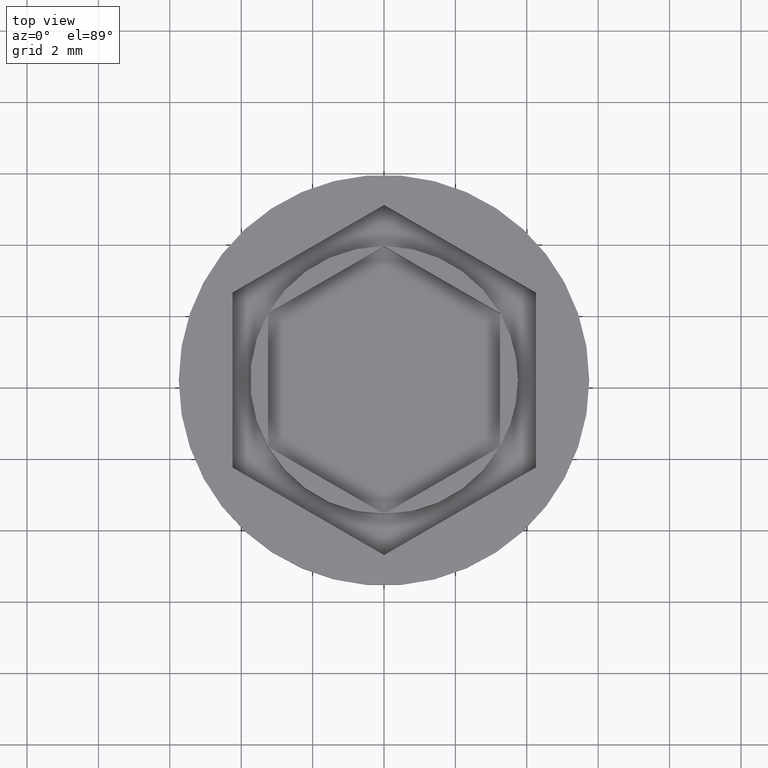
[diagram: clean part render]
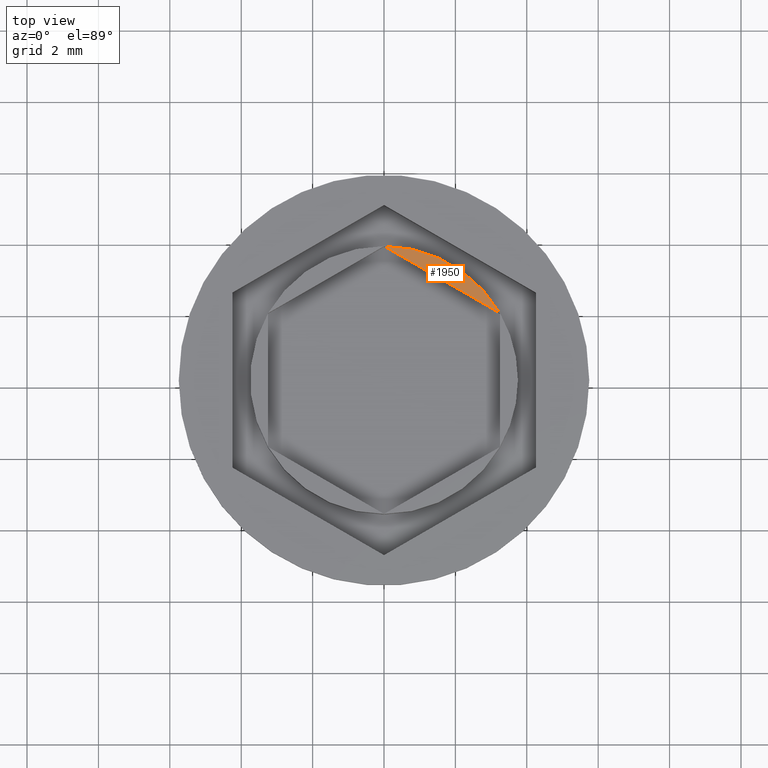
[diagram: same view with one face highlighted and labeled with its STEP entity id]
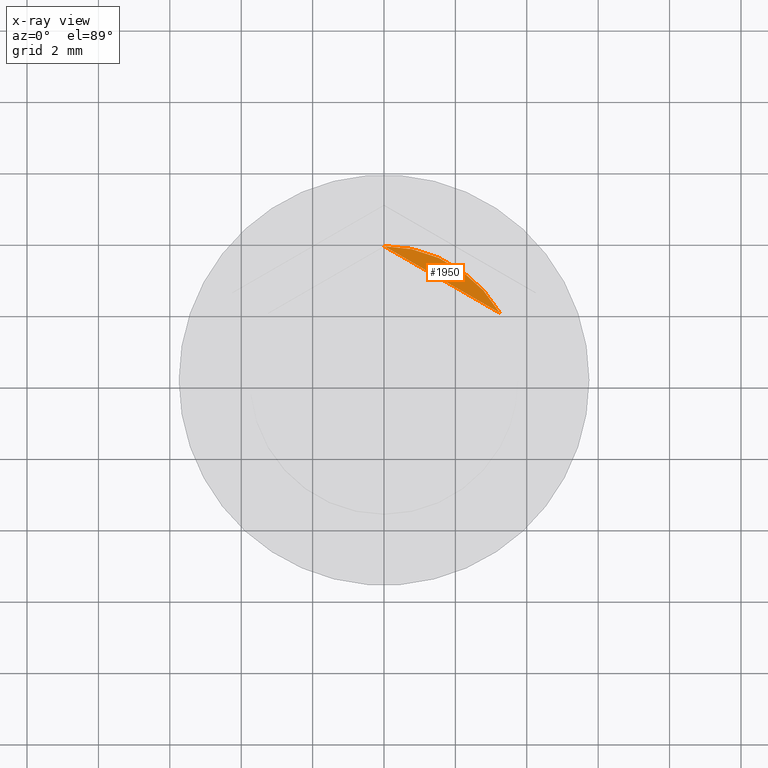
[diagram: x-ray of the same camera — body ghosted, the highlighted face saturated]
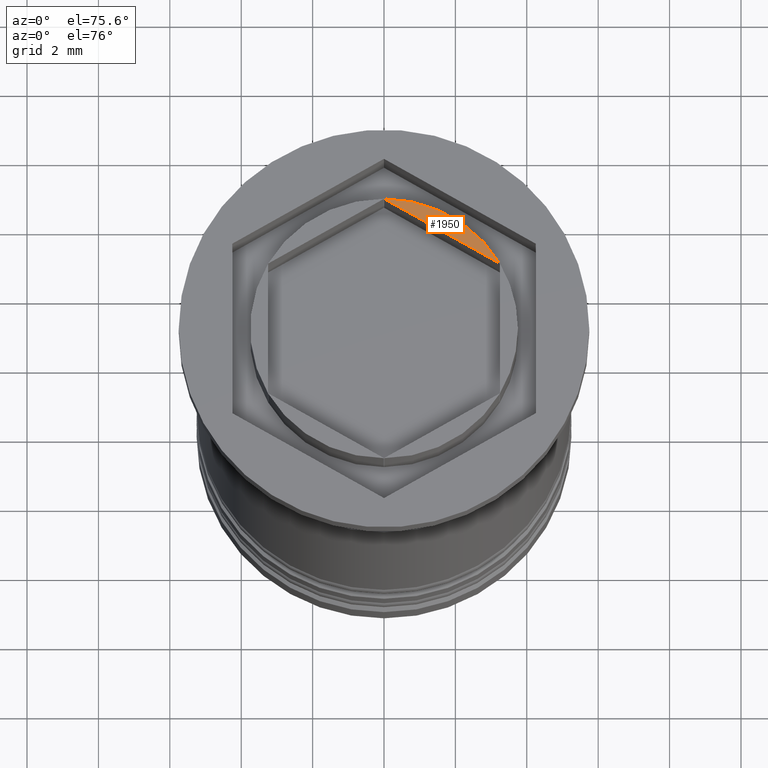
[diagram: same view with one face highlighted and labeled with its STEP entity id]
A machine part, top view. The second image highlights one B-rep face of the part: STEP entity #1950.
The next image is the same camera in x-ray: the body ghosted, the highlighted face saturated — about 0% of this face is hidden behind the body in this view.
A second angle (auxiliary view) of the same face is appended — the face is thin or edge-on in the first view.
In plain terms, the highlighted planar face has unit normal (0, -0, 1).
Its self-contained STEP definition (entity closure, byte-faithful):
#2 = DIRECTION ( 'NONE',  ( -0.000000000000000000, 0.000000000000000000, 1.000000000000000000 ) ) ;
#53 = FACE_OUTER_BOUND ( 'NONE', #1756, .T. ) ;
#121 = VECTOR ( 'NONE', #561, 1000.000000000000114 ) ;
#179 = CARTESIAN_POINT ( 'NONE',  ( 3.245185174601963762, 1.879168215605941938, 0.000000000000000000 ) ) ;
#197 = DIRECTION ( 'NONE',  ( 1.000000000000000000, 0.000000000000000000, 0.000000000000000000 ) ) ;
#205 = PLANE ( 'NONE',  #1053 ) ;
#325 = ORIENTED_EDGE ( 'NONE', *, *, #390, .F. ) ;
#387 = LINE ( 'NONE', #711, #121 ) ;
#390 = EDGE_CURVE ( 'NONE', #603, #478, #387, .T. ) ;
#478 = VERTEX_POINT ( 'NONE', #486 ) ;
#486 = CARTESIAN_POINT ( 'NONE',  ( 0.004809471616708509839, 3.750000000000000888, 0.000000000000000000 ) ) ;
#561 = DIRECTION ( 'NONE',  ( -0.8660254037844388186, 0.4999999999999997224, 0.000000000000000000 ) ) ;
#603 = VERTEX_POINT ( 'NONE', #179 ) ;
#672 = DIRECTION ( 'NONE',  ( 0.000000000000000000, -0.000000000000000000, 1.000000000000000000 ) ) ;
#711 = CARTESIAN_POINT ( 'NONE',  ( 1.624999999999999334, 2.814582562299426716, 0.000000000000000000 ) ) ;
#1053 = AXIS2_PLACEMENT_3D ( 'NONE', #1870, #672, #1893 ) ;
#1212 = AXIS2_PLACEMENT_3D ( 'NONE', #1582, #2, #197 ) ;
#1435 = EDGE_CURVE ( 'NONE', #603, #478, #1847, .T. ) ;
#1582 = CARTESIAN_POINT ( 'NONE',  ( 0.000000000000000000, 0.000000000000000000, 0.000000000000000000 ) ) ;
#1756 = EDGE_LOOP ( 'NONE', ( #325, #1990 ) ) ;
#1847 = CIRCLE ( 'NONE', #1212, 3.750000000000000444 ) ;
#1870 = CARTESIAN_POINT ( 'NONE',  ( 0.000000000000000000, 0.000000000000000000, 0.000000000000000000 ) ) ;
#1893 = DIRECTION ( 'NONE',  ( 1.000000000000000000, 0.000000000000000000, 0.000000000000000000 ) ) ;
#1950 = ADVANCED_FACE ( 'NONE', ( #53 ), #205, .T. ) ;
#1990 = ORIENTED_EDGE ( 'NONE', *, *, #1435, .T. ) ;